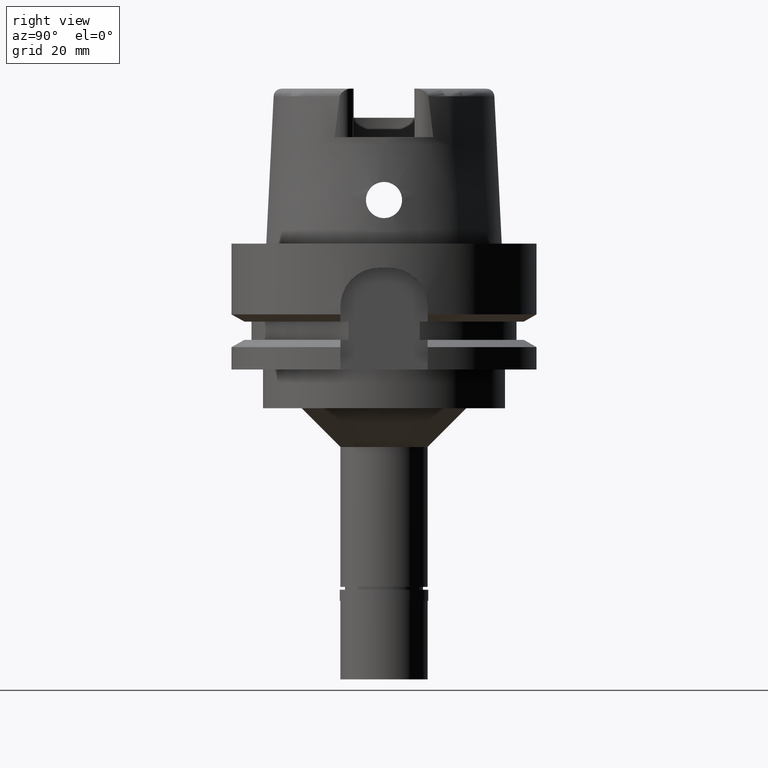
[diagram: clean part render]
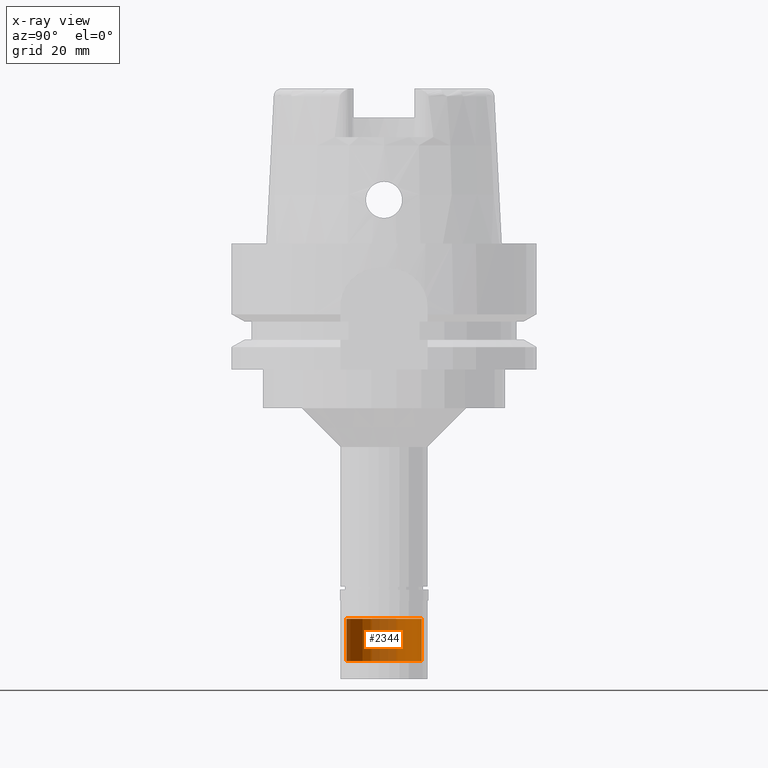
[diagram: x-ray — body ghosted, one internal face saturated and labeled with its STEP entity id]
A machine part, right view, then the same camera in x-ray: the body is ghosted and one INTERNAL B-rep face — a face not visible from any outside direction — is saturated and labeled: STEP entity #2344.
In plain terms, the highlighted cylindrical surface (partial cylindrical patch) has radius 7.8 mm, axis along (0, 0, 1).
Its self-contained STEP definition (entity closure, byte-faithful):
#117 = ORIENTED_EDGE ( 'NONE', *, *, #4312, .T. ) ;
#208 = DIRECTION ( 'NONE',  ( 0.0000000000000000000, 0.0000000000000000000, 1.000000000000000000 ) ) ;
#263 = DIRECTION ( 'NONE',  ( 0.0000000000000000000, 0.0000000000000000000, -1.000000000000000000 ) ) ;
#376 = CARTESIAN_POINT ( 'NONE',  ( 0.0000000000000000000, 0.0000000000000000000, -6.000000000000000000 ) ) ;
#557 = LINE ( 'NONE', #2375, #2402 ) ;
#641 = VECTOR ( 'NONE', #2524, 1000.000000000000000 ) ;
#669 = EDGE_LOOP ( 'NONE', ( #2821, #2235, #117, #680 ) ) ;
#680 = ORIENTED_EDGE ( 'NONE', *, *, #3114, .T. ) ;
#1555 = AXIS2_PLACEMENT_3D ( 'NONE', #4154, #263, #1980 ) ;
#1879 = EDGE_CURVE ( 'NONE', #5267, #2853, #557, .T. ) ;
#1958 = CARTESIAN_POINT ( 'NONE',  ( 0.0000000000000000000, 7.799999999999999822, -6.000000000000000000 ) ) ;
#1980 = DIRECTION ( 'NONE',  ( 0.0000000000000000000, -1.000000000000000000, 0.0000000000000000000 ) ) ;
#2010 = VERTEX_POINT ( 'NONE', #4308 ) ;
#2078 = CARTESIAN_POINT ( 'NONE',  ( 0.0000000000000000000, 7.799999999999999822, -14.69999999999999929 ) ) ;
#2090 = DIRECTION ( 'NONE',  ( 0.0000000000000000000, 0.0000000000000000000, 1.000000000000000000 ) ) ;
#2235 = ORIENTED_EDGE ( 'NONE', *, *, #1879, .F. ) ;
#2344 = ADVANCED_FACE ( 'NONE', ( #3071 ), #3531, .F. ) ;
#2375 = CARTESIAN_POINT ( 'NONE',  ( 0.0000000000000000000, -7.799999999999999822, -14.69999999999999929 ) ) ;
#2402 = VECTOR ( 'NONE', #208, 1000.000000000000000 ) ;
#2524 = DIRECTION ( 'NONE',  ( 0.0000000000000000000, 0.0000000000000000000, 1.000000000000000000 ) ) ;
#2821 = ORIENTED_EDGE ( 'NONE', *, *, #4832, .T. ) ;
#2853 = VERTEX_POINT ( 'NONE', #4924 ) ;
#3071 = FACE_OUTER_BOUND ( 'NONE', #669, .T. ) ;
#3114 = EDGE_CURVE ( 'NONE', #2010, #4229, #3840, .T. ) ;
#3447 = DIRECTION ( 'NONE',  ( 0.0000000000000000000, 1.000000000000000000, 0.0000000000000000000 ) ) ;
#3531 = CYLINDRICAL_SURFACE ( 'NONE', #3767, 7.799999999999999822 ) ;
#3767 = AXIS2_PLACEMENT_3D ( 'NONE', #4372, #4421, #5260 ) ;
#3840 = LINE ( 'NONE', #2078, #641 ) ;
#4154 = CARTESIAN_POINT ( 'NONE',  ( 0.0000000000000000000, 0.0000000000000000000, -14.69999999999999929 ) ) ;
#4229 = VERTEX_POINT ( 'NONE', #1958 ) ;
#4295 = AXIS2_PLACEMENT_3D ( 'NONE', #376, #2090, #3447 ) ;
#4308 = CARTESIAN_POINT ( 'NONE',  ( 0.0000000000000000000, 7.799999999999999822, -14.69999999999999929 ) ) ;
#4312 = EDGE_CURVE ( 'NONE', #5267, #2010, #5506, .T. ) ;
#4372 = CARTESIAN_POINT ( 'NONE',  ( 0.0000000000000000000, 0.0000000000000000000, -19.42500000000000071 ) ) ;
#4421 = DIRECTION ( 'NONE',  ( 0.0000000000000000000, 0.0000000000000000000, 1.000000000000000000 ) ) ;
#4832 = EDGE_CURVE ( 'NONE', #4229, #2853, #5081, .T. ) ;
#4924 = CARTESIAN_POINT ( 'NONE',  ( 0.0000000000000000000, -7.799999999999999822, -6.000000000000000000 ) ) ;
#5081 = CIRCLE ( 'NONE', #4295, 7.799999999999999822 ) ;
#5260 = DIRECTION ( 'NONE',  ( 0.0000000000000000000, 1.000000000000000000, 0.0000000000000000000 ) ) ;
#5267 = VERTEX_POINT ( 'NONE', #5335 ) ;
#5335 = CARTESIAN_POINT ( 'NONE',  ( 0.0000000000000000000, -7.799999999999999822, -14.69999999999999929 ) ) ;
#5506 = CIRCLE ( 'NONE', #1555, 7.799999999999999822 ) ;